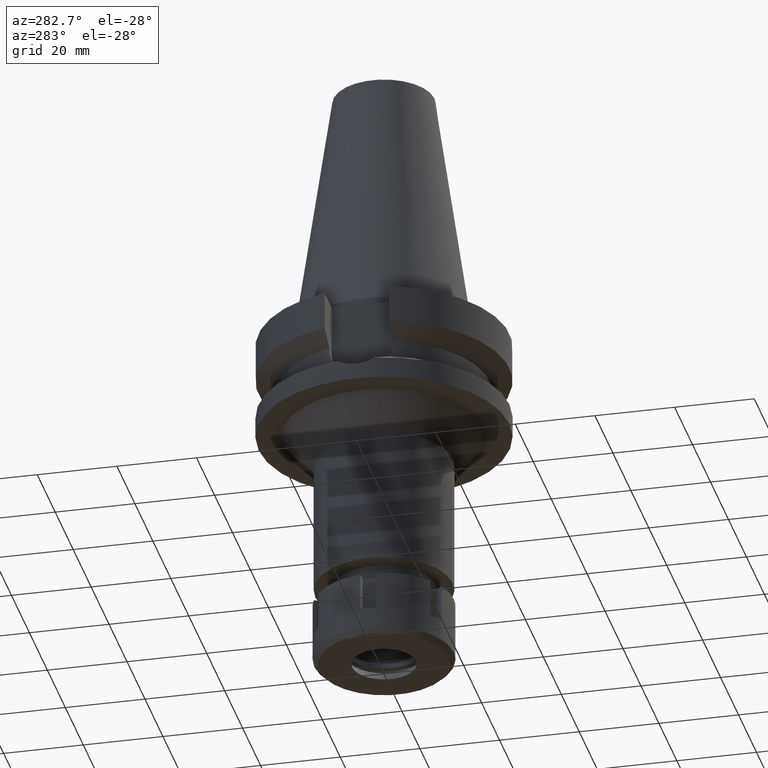
[diagram: clean part render]
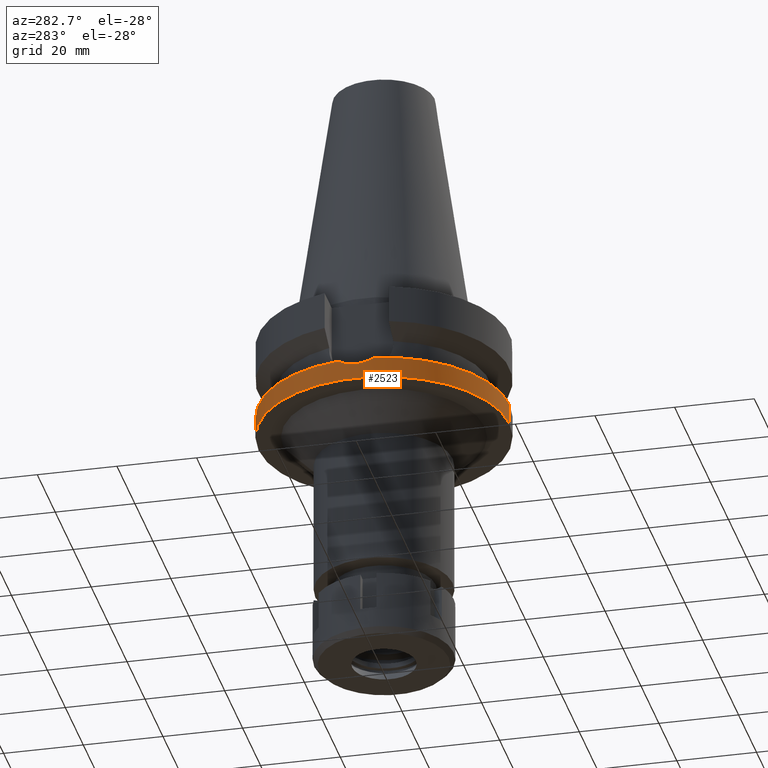
[diagram: same view with one face highlighted and labeled with its STEP entity id]
A machine part, auxiliary view. The second image highlights one B-rep face of the part: STEP entity #2523.
In plain terms, the highlighted cylindrical surface (partial cylindrical patch) has radius 31.5 mm, axis along (0, 0, -1).
Its self-contained STEP definition (entity closure, byte-faithful):
#103 = VERTEX_POINT ( 'NONE', #3482 ) ;
#125 = LINE ( 'NONE', #1236, #716 ) ;
#309 = CARTESIAN_POINT ( 'NONE',  ( -31.28470547692829840, -3.750768100159064034, -22.12755020538207518 ) ) ;
#325 = CARTESIAN_POINT ( 'NONE',  ( -31.49253540246489536, -0.7829780335693035109, -22.97155374604022171 ) ) ;
#337 = EDGE_CURVE ( 'NONE', #2178, #103, #125, .T. ) ;
#344 = CARTESIAN_POINT ( 'NONE',  ( -31.44527646887210182, -1.857544946896778848, -22.78339309170337756 ) ) ;
#373 = EDGE_CURVE ( 'NONE', #2178, #1019, #2148, .T. ) ;
#519 = ORIENTED_EDGE ( 'NONE', *, *, #771, .T. ) ;
#555 = AXIS2_PLACEMENT_3D ( 'NONE', #2379, #2394, #2884 ) ;
#616 = CARTESIAN_POINT ( 'NONE',  ( -31.50024232868986473, 0.7571333964143366346, -23.00095759426206499 ) ) ;
#670 = CARTESIAN_POINT ( 'NONE',  ( 0.0000000000000000000, 31.50000000000000000, -21.63449434733000132 ) ) ;
#716 = VECTOR ( 'NONE', #3513, 1000.000000000000000 ) ;
#728 = DIRECTION ( 'NONE',  ( -0.9898094849552905306, 0.1423979757318985240, 0.0000000000000000000 ) ) ;
#771 = EDGE_CURVE ( 'NONE', #773, #103, #1746, .T. ) ;
#773 = VERTEX_POINT ( 'NONE', #2969 ) ;
#775 = DIRECTION ( 'NONE',  ( 0.0000000000000000000, 0.0000000000000000000, -1.000000000000000000 ) ) ;
#808 = DIRECTION ( 'NONE',  ( 0.0000000000000000000, 1.099151708819000049E-13, -1.000000000000000000 ) ) ;
#856 = CARTESIAN_POINT ( 'NONE',  ( 0.0000000000000000000, 31.50000000000000000, -21.63449434733000132 ) ) ;
#872 = CARTESIAN_POINT ( 'NONE',  ( -31.41056491124587069, 2.372237050526222912, -22.64256036890056123 ) ) ;
#887 = CARTESIAN_POINT ( 'NONE',  ( -31.47150128874050168, 1.550917995535984639, -22.89093254494694563 ) ) ;
#913 = ORIENTED_EDGE ( 'NONE', *, *, #1933, .T. ) ;
#974 = EDGE_CURVE ( 'NONE', #3222, #1019, #1982, .T. ) ;
#982 = DIRECTION ( 'NONE',  ( 0.0000000000000000000, 1.000000000000000000, 0.0000000000000000000 ) ) ;
#996 = VERTEX_POINT ( 'NONE', #670 ) ;
#1019 = VERTEX_POINT ( 'NONE', #2329 ) ;
#1151 = CARTESIAN_POINT ( 'NONE',  ( -31.33704727451106820, 3.201741485571319323, -22.33858232039741054 ) ) ;
#1160 = CIRCLE ( 'NONE', #2115, 31.50000000000001421 ) ;
#1165 = CARTESIAN_POINT ( 'NONE',  ( -31.17899877608999759, 4.485536235554000051, -21.63449434733000132 ) ) ;
#1236 = CARTESIAN_POINT ( 'NONE',  ( 0.0000000000000000000, -31.50000000000000000, -21.63449434733000132 ) ) ;
#1247 = EDGE_LOOP ( 'NONE', ( #913, #3141, #519, #1522, #1915, #2696 ) ) ;
#1392 = AXIS2_PLACEMENT_3D ( 'NONE', #2441, #2989, #2181 ) ;
#1427 = CARTESIAN_POINT ( 'NONE',  ( -31.17899877608999759, -4.485536235554000051, -21.63449434733000132 ) ) ;
#1429 = EDGE_CURVE ( 'NONE', #996, #773, #1707, .T. ) ;
#1444 = CARTESIAN_POINT ( 'NONE',  ( -31.39027486917530396, 2.628603510742625105, -22.55969012852260747 ) ) ;
#1461 = CARTESIAN_POINT ( 'NONE',  ( -31.43643257257468093, -2.003966855037653261, -22.74771882455730676 ) ) ;
#1522 = ORIENTED_EDGE ( 'NONE', *, *, #337, .F. ) ;
#1707 = LINE ( 'NONE', #856, #1878 ) ;
#1722 = CARTESIAN_POINT ( 'NONE',  ( -31.41623505044934817, -2.295962347423724736, -22.66567875136246002 ) ) ;
#1734 = CARTESIAN_POINT ( 'NONE',  ( -31.49987638199703355, -0.3937373737410969632, -22.99951167286950593 ) ) ;
#1746 = CIRCLE ( 'NONE', #2519, 31.50000000000000000 ) ;
#1751 = CARTESIAN_POINT ( 'NONE',  ( -31.37890571234710180, 2.759253316053839278, -22.51292583804529102 ) ) ;
#1841 = FACE_OUTER_BOUND ( 'NONE', #1247, .T. ) ;
#1861 = CYLINDRICAL_SURFACE ( 'NONE', #1392, 31.50000000000000000 ) ;
#1878 = VECTOR ( 'NONE', #808, 1000.000000000000000 ) ;
#1915 = ORIENTED_EDGE ( 'NONE', *, *, #373, .T. ) ;
#1933 = EDGE_CURVE ( 'NONE', #3222, #996, #1160, .T. ) ;
#1982 = B_SPLINE_CURVE_WITH_KNOTS ( 'NONE', 3,
 ( #1165, #2855, #2562, #1151, #2285, #1751, #1444, #2324, #3144, #872, #3425, #887, #616, #1734, #325, #2874, #3407, #344, #1461, #2008, #3131, #1722, #2579, #2842, #309, #1427 ),
 .UNSPECIFIED., .F., .F.,
 ( 4, 2, 2, 1, 1, 2, 2, 2, 2, 2, 1, 1, 2, 2, 4 ),
 ( 0.0000000000000000000, 0.1250000000000031364, 0.1875000000000047184, 0.2187500000000056066, 0.2343750000000062450, 0.2421875000000063005, 0.2500000000000063838, 0.5000000000000066613, 0.6250000000000068834, 0.6875000000000067724, 0.7187500000000066613, 0.7343750000000067724, 0.7421875000000067724, 0.7500000000000066613, 1.000000000000000000 ),
 .UNSPECIFIED. ) ;
#2008 = CARTESIAN_POINT ( 'NONE',  ( -31.42493032681629828, -2.174413258173092611, -22.70105836180329462 ) ) ;
#2115 = AXIS2_PLACEMENT_3D ( 'NONE', #3306, #775, #728 ) ;
#2148 = CIRCLE ( 'NONE', #555, 31.50000000000000000 ) ;
#2178 = VERTEX_POINT ( 'NONE', #2815 ) ;
#2181 = DIRECTION ( 'NONE',  ( 0.0000000000000000000, -1.000000000000000000, 0.0000000000000000000 ) ) ;
#2285 = CARTESIAN_POINT ( 'NONE',  ( -31.35484698255445224, 3.022878705303385427, -22.41324384625959354 ) ) ;
#2324 = CARTESIAN_POINT ( 'NONE',  ( -31.40238352135572697, 2.478482150256739569, -22.60918600287847724 ) ) ;
#2329 = CARTESIAN_POINT ( 'NONE',  ( -31.17899877608999759, -4.485536235554000051, -21.63449434733000132 ) ) ;
#2379 = CARTESIAN_POINT ( 'NONE',  ( 0.0000000000000000000, 0.0000000000000000000, -21.63449434733000132 ) ) ;
#2394 = DIRECTION ( 'NONE',  ( 0.0000000000000000000, 0.0000000000000000000, -1.000000000000000000 ) ) ;
#2441 = CARTESIAN_POINT ( 'NONE',  ( 0.0000000000000000000, 2.115822274886999895E-14, 72.76999999999999602 ) ) ;
#2519 = AXIS2_PLACEMENT_3D ( 'NONE', #3027, #2729, #982 ) ;
#2523 = ADVANCED_FACE ( 'NONE', ( #1841 ), #1861, .T. ) ;
#2562 = CARTESIAN_POINT ( 'NONE',  ( -31.27836648583606660, 3.744813399158533063, -22.08709055486568218 ) ) ;
#2579 = CARTESIAN_POINT ( 'NONE',  ( -31.41425586186309715, -2.322858716161529724, -22.65761362937715262 ) ) ;
#2696 = ORIENTED_EDGE ( 'NONE', *, *, #974, .F. ) ;
#2729 = DIRECTION ( 'NONE',  ( 0.0000000000000000000, 0.0000000000000000000, 1.000000000000000000 ) ) ;
#2815 = CARTESIAN_POINT ( 'NONE',  ( 0.0000000000000000000, -31.50000000000000000, -21.63449434733000132 ) ) ;
#2842 = CARTESIAN_POINT ( 'NONE',  ( -31.36260275698521482, -3.014870738529458638, -22.44700345725818380 ) ) ;
#2855 = CARTESIAN_POINT ( 'NONE',  ( -31.23220374065960314, 4.115708095070688799, -21.88266233714224640 ) ) ;
#2874 = CARTESIAN_POINT ( 'NONE',  ( -31.47069543721491769, -1.368873748139070923, -22.88521609265126600 ) ) ;
#2884 = DIRECTION ( 'NONE',  ( 0.0000000000000000000, -1.000000000000000000, 0.0000000000000000000 ) ) ;
#2969 = CARTESIAN_POINT ( 'NONE',  ( 0.0000000000000000000, 31.50000000000000000, -27.00000000000000000 ) ) ;
#2989 = DIRECTION ( 'NONE',  ( 0.0000000000000000000, 0.0000000000000000000, -1.000000000000000000 ) ) ;
#3027 = CARTESIAN_POINT ( 'NONE',  ( 0.0000000000000000000, 2.115822274886999895E-14, -27.00000000000000000 ) ) ;
#3131 = CARTESIAN_POINT ( 'NONE',  ( -31.41974700004597665, -2.247358039323430035, -22.67997564925673970 ) ) ;
#3138 = CARTESIAN_POINT ( 'NONE',  ( -31.17899877608999759, 4.485536235554000051, -21.63449434733000132 ) ) ;
#3141 = ORIENTED_EDGE ( 'NONE', *, *, #1429, .T. ) ;
#3144 = CARTESIAN_POINT ( 'NONE',  ( -31.40732536569322519, 2.414664100622499809, -22.62934834046703969 ) ) ;
#3222 = VERTEX_POINT ( 'NONE', #3138 ) ;
#3306 = CARTESIAN_POINT ( 'NONE',  ( 0.0000000000000000000, 0.0000000000000000000, -21.63449434733000132 ) ) ;
#3407 = CARTESIAN_POINT ( 'NONE',  ( -31.46161069947298117, -1.564500927467319613, -22.84904545394604369 ) ) ;
#3425 = CARTESIAN_POINT ( 'NONE',  ( -31.41196838671981340, 2.353633167400985826, -22.64828270924286002 ) ) ;
#3482 = CARTESIAN_POINT ( 'NONE',  ( 0.0000000000000000000, -31.50000000000000000, -27.00000000000000000 ) ) ;
#3513 = DIRECTION ( 'NONE',  ( 0.0000000000000000000, -1.105773104655000034E-13, -1.000000000000000000 ) ) ;